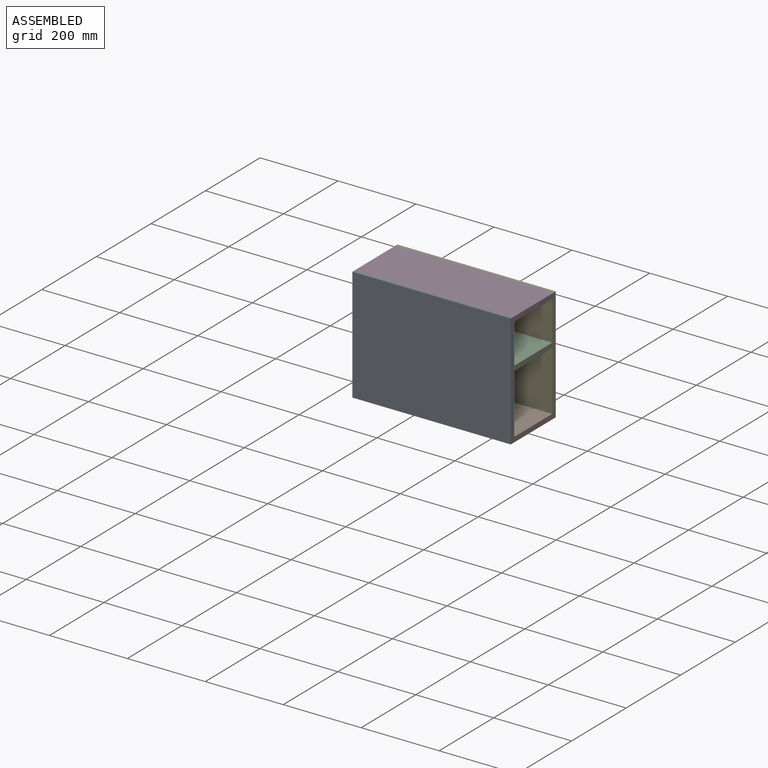
[diagram: assembled view]
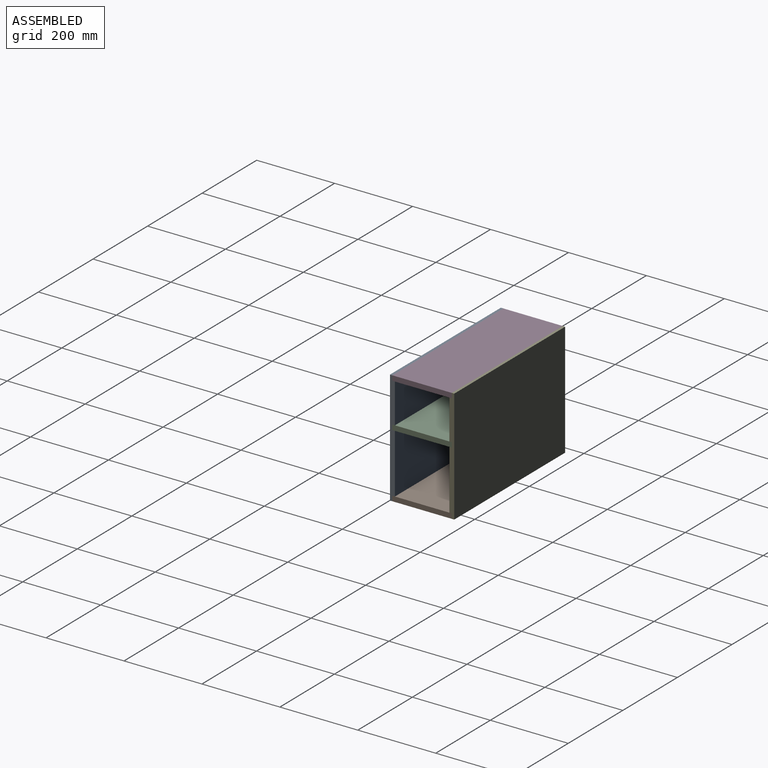
[diagram: assembled view, second angle]
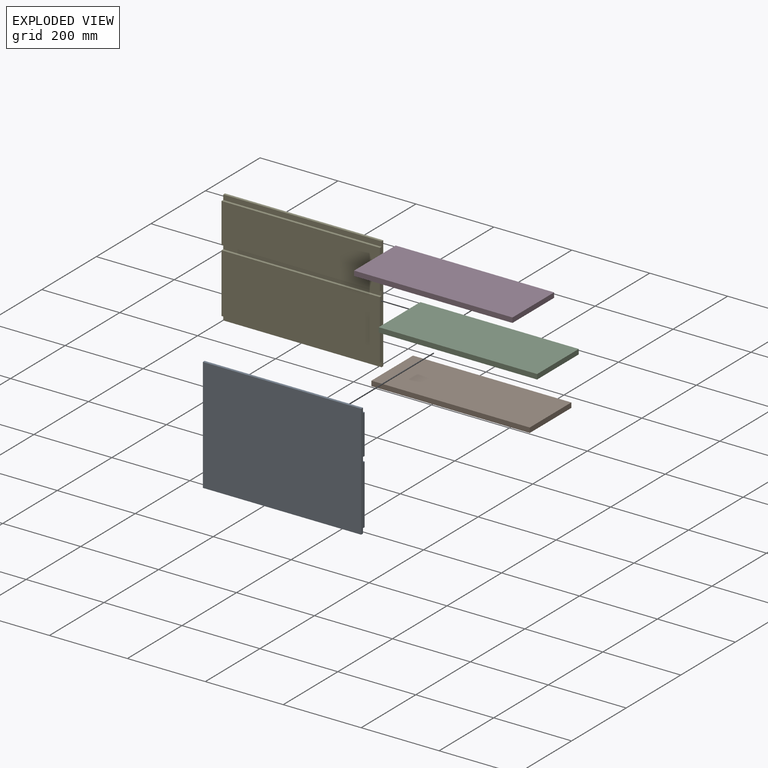
[diagram: exploded view]
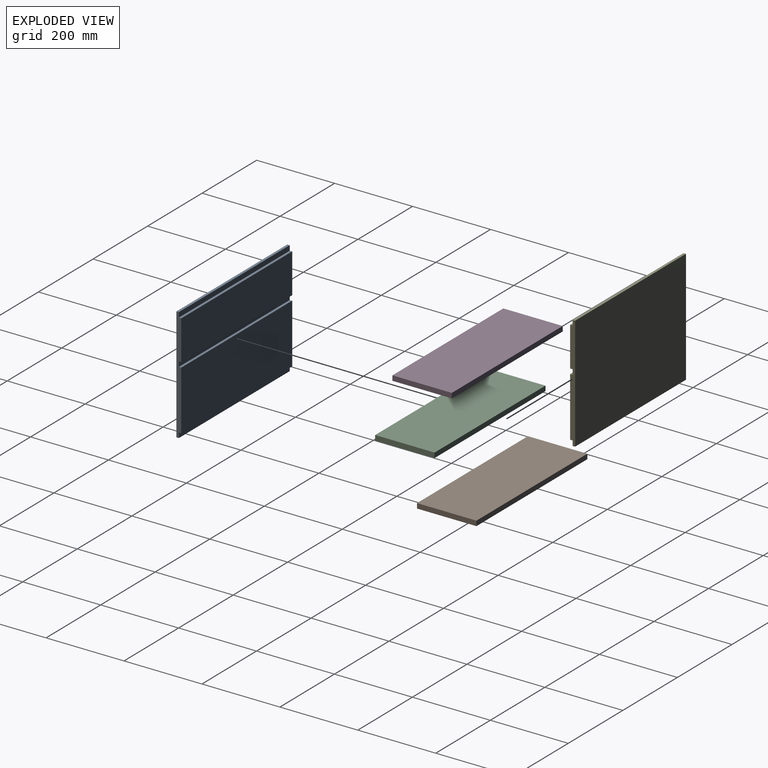
[diagram: exploded view, second angle]
ASSEMBLY  parts=5 mates=12
PART A: 14 faces, bbox 406.4x12.7x292.1 mm
  f0: plane 406.4x6.35mm, normal (0,0,-1), area 2580.6mm2, adj f4,f5,f6,f11
  f1: plane 406.4x6.35mm, normal (0,0,1), area 2580.6mm2, adj f4,f5,f6,f13
  f2: plane 406.4x101.6mm, normal (0,-1,0), area 41290.2mm2, adj f4,f5,f7,f12
  f3: plane 406.4x152.4mm, normal (0,-1,0), area 61935.4mm2, adj f4,f5,f8,f10
  f4: plane 292.1x12.7mm, normal (-1,0,0), area 3467.7mm2, adj f0,f1,f2,f3,f6,f7,f8,f9
  f5: plane 292.1x12.7mm, normal (1,0,0), area 3467.7mm2, adj f0,f1,f2,f3,f6,f7,f8,f9
  f6: plane 406.4x292.1mm, normal (0,1,0), area 118709.4mm2, adj f0,f1,f4,f5
  f7: plane 406.4x6.35mm, normal (0,0,-1), area 2580.6mm2, adj f2,f4,f5,f9
  f8: plane 406.4x6.35mm, normal (0,0,1), area 2580.6mm2, adj f3,f4,f5,f9
  f9: plane 406.4x12.7mm, normal (0,-1,0), area 5161.3mm2, adj f4,f5,f7,f8
  f10: plane 406.4x6.35mm, normal (0,0,-1), area 2580.6mm2, adj f3,f4,f5,f11
  f11: plane 406.4x12.7mm, normal (0,-1,0), area 5161.3mm2, adj f0,f4,f5,f10
  f12: plane 406.4x6.35mm, normal (0,0,1), area 2580.6mm2, adj f2,f4,f5,f13
  f13: plane 406.4x12.7mm, normal (0,-1,0), area 5161.3mm2, adj f1,f4,f5,f12
PART B: 6 faces, bbox 406.4x152.4x12.7 mm
  f0: plane 152.4x12.7mm, normal (-1,0,0), area 1935.5mm2, adj f1,f3,f4,f5
  f1: plane 406.4x12.7mm, normal (0,-1,0), area 5161.3mm2, adj f0,f2,f4,f5
  f2: plane 152.4x12.7mm, normal (1,0,0), area 1935.5mm2, adj f1,f3,f4,f5
  f3: plane 406.4x12.7mm, normal (0,1,0), area 5161.3mm2, adj f0,f2,f4,f5
  f4: plane 406.4x152.4mm, normal (0,0,1), area 61935.4mm2, adj f0,f1,f2,f3
  f5: plane 406.4x152.4mm, normal (0,0,-1), area 61935.4mm2, adj f0,f1,f2,f3
PART C: same geometry as B
PART D: same geometry as B
PART E: same geometry as A
PLACE A rot(axis=(0,0,1),180deg) t=(1193.46,55.65,-257.66)mm
PLACE B t=(-827.94,-161.13,-499.94)mm
PLACE C t=(-827.94,-161.13,-334.84)mm
PLACE D rot(axis=(0,0,1),0deg) t=(-827.94,-161.13,-220.54)mm
PLACE E t=(-590.47,220.75,-257.66)mm
MATE planar A.f13 <-> D.f1  axis (0,1,0) through (301.49,62,-214.19)mm
MATE planar D.f2 <-> A.f4  axis (1,0,0) through (504.69,138.2,-214.19)mm
MATE planar B.f4 <-> E.f10  axis (0,0,1) through (301.49,138.2,-487.24)mm
MATE planar E.f12 <-> D.f5  axis (0,0,1) through (504.69,208.05,-220.54)mm
MATE planar D.f2 <-> E.f5  axis (1,0,0) through (504.69,138.2,-214.19)mm
MATE planar C.f2 <-> E.f5  axis (1,0,0) through (504.69,138.2,-328.49)mm
MATE planar E.f11 <-> B.f3  axis (0,-1,0) through (301.49,214.4,-493.59)mm
MATE planar E.f7 <-> C.f4  axis (0,0,-1) through (301.49,211.22,-322.14)mm
MATE planar A.f12 <-> D.f5  axis (0,0,1) through (301.49,65.17,-220.54)mm
MATE planar C.f3 <-> E.f9  axis (0,1,0) through (301.49,214.4,-328.49)mm
MATE planar E.f13 <-> D.f3  axis (0,-1,0) through (301.49,214.4,-214.19)mm
MATE planar E.f5 <-> B.f2  axis (1,0,0) through (504.69,214.62,-354.48)mm
